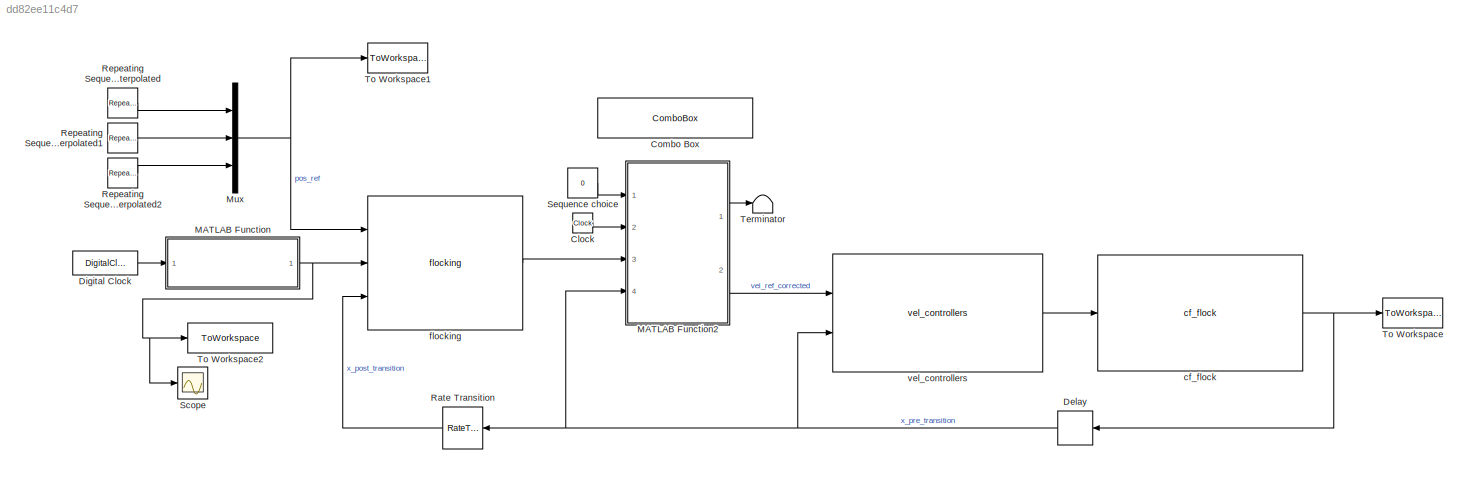
MODEL slx_dd82ee11c4d7
KIND model
CONFIG AbsTol = auto
CONFIG EnableMultiTasking = off
CONFIG FixedStep = continuous_h
CONFIG MaxStep = auto
CONFIG MinStep = auto
CONFIG RelTol = 1e-3
CONFIG SampleTimeConstraint = Unconstrained
CONFIG Solver = FixedStepAuto
CONFIG SolverName = FixedStepAuto
CONFIG StartTime = 0.0
CONFIG StopTime = 10
BLOCK [Clock] Clock
BLOCK [ComboBox] Combo Box
  SelectedLabel = Disabled
  WebBlockId = 48
BLOCK [Delay] Delay
  DelayLength = 1
  InputPortMap = u0
  Ports = [1, 1]
BLOCK [DigitalClock] Digital Clock
  SampleTime = continuous_h
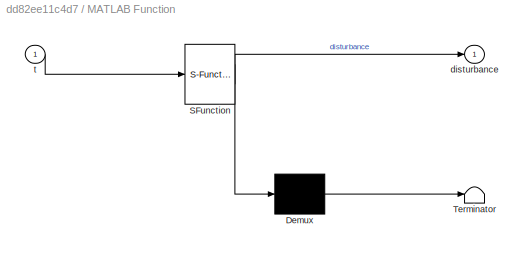
BLOCK [SubSystem] MATLAB Function
  ErrorFcn = Stateflow.Translate.translate
  PermitHierarchicalResolution = ExplicitOnly
  Ports = [1, 1]
  RequestExecContextInheritance = off
  SFBlockType = MATLAB Function
  TreatAsAtomicUnit = on
BLOCK [Demux] MATLAB Function/ Demux 
  Outputs = 1
  Ports = [1, 1]
BLOCK [S-Function] MATLAB Function/ SFunction 
  EnableBusSupport = on
  FunctionName = sf_sfun
  Parameters = disturbances
  PortCounts = [1 2]
  Ports = [1, 2]
  SFcnIsStateOwnerBlock = off
  SFunctionDeploymentMode = off
  Tag = Stateflow S-Function flocking 2
BLOCK [Terminator] MATLAB Function/ Terminator 
BLOCK [Outport] MATLAB Function/disturbance
  IconDisplay = Port number
BLOCK [Inport] MATLAB Function/t
  IconDisplay = Port number
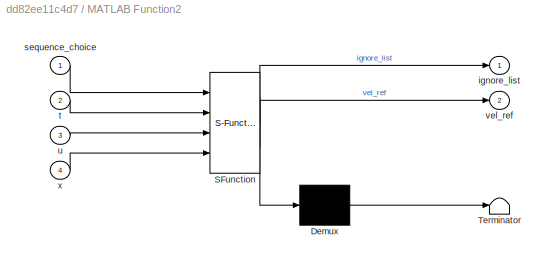
BLOCK [SubSystem] MATLAB Function2
  ErrorFcn = Stateflow.Translate.translate
  PermitHierarchicalResolution = ExplicitOnly
  Ports = [4, 2]
  RequestExecContextInheritance = off
  SFBlockType = MATLAB Function
  TreatAsAtomicUnit = on
BLOCK [Demux] MATLAB Function2/ Demux 
  Outputs = 1
  Ports = [1, 1]
BLOCK [S-Function] MATLAB Function2/ SFunction 
  EnableBusSupport = on
  FunctionName = sf_sfun
  PortCounts = [4 3]
  Ports = [4, 3]
  SFcnIsStateOwnerBlock = off
  SFunctionDeploymentMode = off
  Tag = Stateflow S-Function flocking 3
BLOCK [Terminator] MATLAB Function2/ Terminator 
BLOCK [Outport] MATLAB Function2/ignore_list
  IconDisplay = Port number
BLOCK [Inport] MATLAB Function2/sequence_choice
  IconDisplay = Port number
BLOCK [Inport] MATLAB Function2/t
  IconDisplay = Port number
  Port = 2
BLOCK [Inport] MATLAB Function2/u
  IconDisplay = Port number
  Port = 3
BLOCK [Outport] MATLAB Function2/vel_ref
  IconDisplay = Port number
  Port = 2
BLOCK [Inport] MATLAB Function2/x
  IconDisplay = Port number
  Port = 4
BLOCK [Mux] Mux
  DisplayOption = bar
  Inputs = 3
  Ports = [3, 1]
BLOCK [RateTransition] Rate Transition
  OutPortSampleTime = 0.05
BLOCK [Reference] Repeating Sequence Interpolated  REF=simulink/Sources/Repeating
Sequence
Interpolated
  Ports = [0, 1]
  SourceBlock = simulink/Sources/Repeating\nSequence\nInterpolated
  SourceProductBaseCode = SL
  SourceProductName = Simulink
  SourceType = Repeating Sequence Interpolated
BLOCK [Reference] Repeating Sequence Interpolated1  REF=simulink/Sources/Repeating
Sequence
Interpolated
  Ports = [0, 1]
  SourceBlock = simulink/Sources/Repeating\nSequence\nInterpolated
  SourceProductBaseCode = SL
  SourceProductName = Simulink
  SourceType = Repeating Sequence Interpolated
BLOCK [Reference] Repeating Sequence Interpolated2  REF=simulink/Sources/Repeating
Sequence
Interpolated
  Ports = [0, 1]
  SourceBlock = simulink/Sources/Repeating\nSequence\nInterpolated
  SourceProductBaseCode = SL
  SourceProductName = Simulink
  SourceType = Repeating Sequence Interpolated
BLOCK [Scope] Scope
  Floating = off
  NumInputPorts = 1
  Ports = [1]
  ScopeSpecificationString = Simulink.scopes.TimeScopeBlockCfg('CurrentConfiguration', extmgr.ConfigurationSet(extmgr.Configuration('Core','General UI',true),extmgr.Configuration('Core','Source UI',true),extmgr.Configuration('Sources','WiredSimulink',true),extmgr.Configuration('Visuals','Time Domain',true,'SerializedDisplays',{struct('MinYLimReal','-9.87299','MaxYLimReal','10.43226','YLabelReal','','MinYLimMag','0.00000','Max...<+1420ch>
BLOCK [Constant] Sequence choice
  Value = 0
BLOCK [Terminator] Terminator
BLOCK [ToWorkspace] To Workspace
  FixptAsFi = on
  MaxDataPoints = inf
  Ports = [1]
  SampleTime = continuous_h
  Save2DSignal = 3-D array (concatenate along third dimension)
  SaveFormat = Timeseries
  VariableName = state
BLOCK [ToWorkspace] To Workspace1
  FixptAsFi = on
  MaxDataPoints = inf
  Ports = [1]
  SampleTime = continuous_h
  Save2DSignal = 3-D array (concatenate along third dimension)
  SaveFormat = Timeseries
  VariableName = ref
BLOCK [ToWorkspace] To Workspace2
  FixptAsFi = on
  MaxDataPoints = inf
  Ports = [1]
  SampleTime = -1
  Save2DSignal = 3-D array (concatenate along third dimension)
  SaveFormat = Timeseries
  VariableName = disturbances_real
BLOCK [Reference] cf_flock  REF=cf_lib/cf_flock  (lib defined in slx_a8dafeb2bc56)
  Ports = [1, 1]
  SourceBlock = cf_lib/cf_flock
  SourceType = SubSystem
BLOCK [Reference] flocking  REF=flocking_lib/flocking  (lib defined in slx_36fecec2890c)
  Ports = [3, 1]
  SourceBlock = flocking_lib/flocking
  SourceType = SubSystem
BLOCK [Reference] vel_controllers  REF=vel_controller_lib/vel_controllers  (lib defined in slx_bda01cb8c3d0)
  Ports = [2, 1]
  SourceBlock = vel_controller_lib/vel_controllers
  SourceType = SubSystem
LINE Clock:1 -> MATLAB Function2:2
NET Delay:1 -> MATLAB Function2:4, Rate Transition:1, vel_controllers:2
LINE Digital Clock:1 -> MATLAB Function:1
LINE MATLAB Function2:1 -> Terminator:1
LINE MATLAB Function2:2 -> vel_controllers:1
NET MATLAB Function:1 -> Scope:1, To Workspace2:1, flocking:2
NET Mux:1 -> To Workspace1:1, flocking:1
LINE Rate Transition:1 -> flocking:3
LINE Repeating Sequence Interpolated1:1 -> Mux:2
LINE Repeating Sequence Interpolated2:1 -> Mux:3
LINE Repeating Sequence Interpolated:1 -> Mux:1
LINE Sequence choice:1 -> MATLAB Function2:1
NET cf_flock:1 -> Delay:1, To Workspace:1
LINE flocking:1 -> MATLAB Function2:3
LINE vel_controllers:1 -> cf_flock:1
note: NET lines group one-source signal fan-out (src -> all destinations, sorted); 1:1 wires keep LINE
CHART MATLAB Function states=1 transitions=1
  STATE_LABEL 'eML_blk_kernel()'
  STATE_LABEL 'SCRIPT:\nfunction disturbance = dynamic_disturbance(t, disturbances)\ndisturbance = disturbances;\n%disturbance(3,1) = disturbances(3,1) - 49.6 + 30*t - 9.82*t^2/2;\n%disturbance(1,1) = disturbances(1,1) - 3 + 1*t;\n'
CHART MATLAB Function2 states=1 transitions=1
  STATE_LABEL 'eML_blk_kernel()'
  STATE_LABEL 'SCRIPT:\nfunction [ignore_list, vel_ref] = intercept_ref(sequence_choice, t, u, x)\nvel_ref = u;\nignore_list = [0];\nif sequence_choice == 0\n    return\nend\n\n[n_states, N] = size(x);\n\nswitch sequence_choice\n    case 1 % Merge 2\n        if t < 6\n            r = [0; -1; 1];\n            e = r - x(1:3,1);\n            vel_ref(:,1) = 0.5*e;\n        end\n        \n    case 2 % Fly through\n        r = [2; 0; 1]...<+415ch>'
